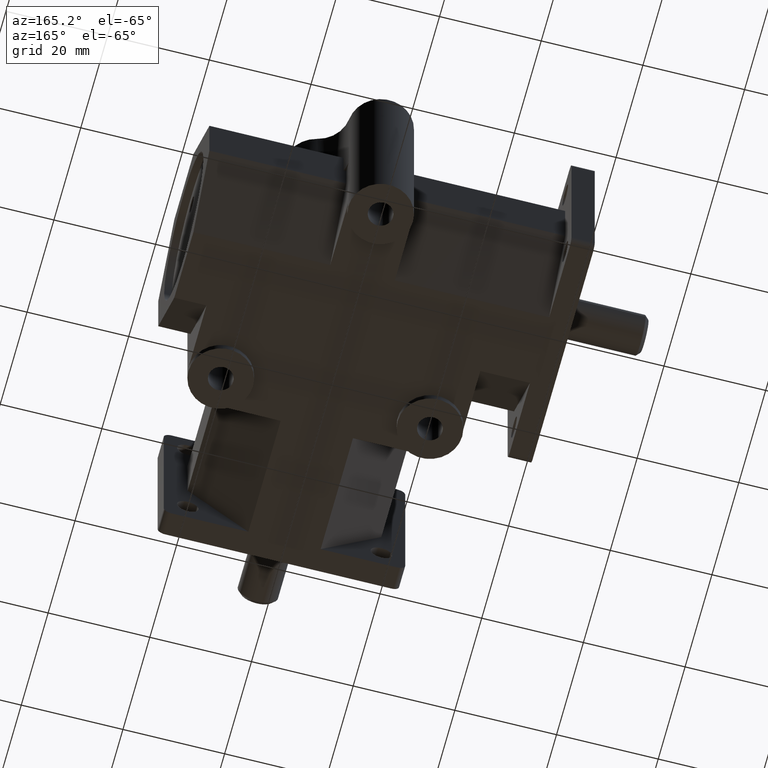
[diagram: clean part render]
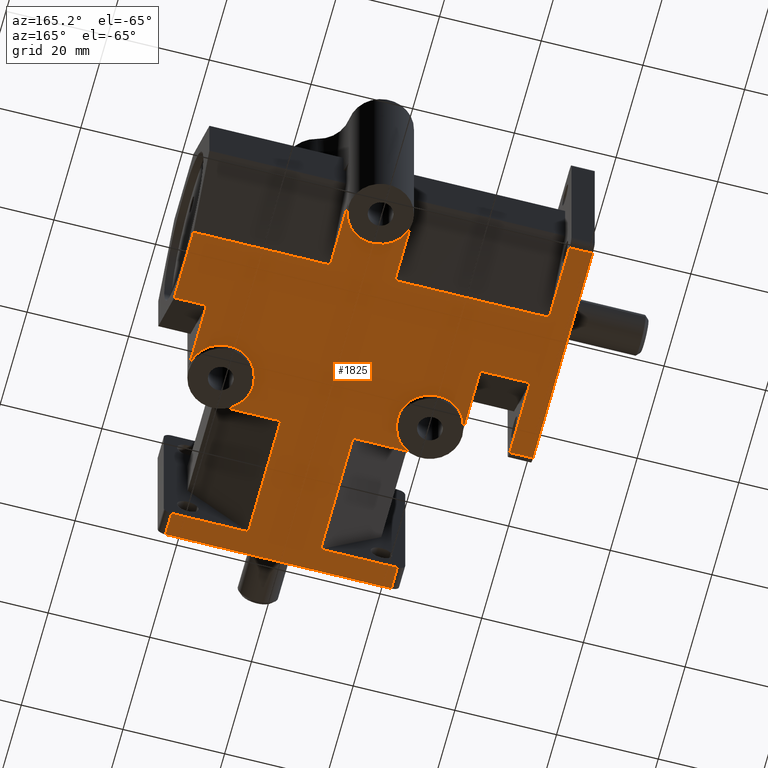
[diagram: same view with one face highlighted and labeled with its STEP entity id]
A machine part, auxiliary view. The second image highlights one B-rep face of the part: STEP entity #1825.
In plain terms, the highlighted planar face has unit normal (0, 0, 1).
Its self-contained STEP definition (entity closure, byte-faithful):
#64=PLANE('',#1993);
#153=FACE_OUTER_BOUND('',#270,.T.);
#270=EDGE_LOOP('',(#1360,#1361,#1362,#1363,#1364,#1365,#1366,#1367,#1368,
#1369,#1370,#1371,#1372,#1373,#1374,#1375,#1376,#1377,#1378,#1379,#1380,
#1381,#1382,#1383,#1384,#1385,#1386));
#364=CIRCLE('',#1912,6.35);
#412=CIRCLE('',#1994,6.35);
#413=CIRCLE('',#1995,6.35);
#414=CIRCLE('',#1996,6.35);
#469=LINE('',#2785,#642);
#472=LINE('',#2797,#645);
#477=LINE('',#2821,#650);
#480=LINE('',#2833,#653);
#485=LINE('',#2846,#658);
#487=LINE('',#2858,#660);
#488=LINE('',#2860,#661);
#489=LINE('',#2862,#662);
#490=LINE('',#2866,#663);
#491=LINE('',#2868,#664);
#492=LINE('',#2869,#665);
#493=LINE('',#2870,#666);
#494=LINE('',#2872,#667);
#495=LINE('',#2874,#668);
#496=LINE('',#2875,#669);
#497=LINE('',#2877,#670);
#498=LINE('',#2879,#671);
#499=LINE('',#2881,#672);
#500=LINE('',#2883,#673);
#501=LINE('',#2885,#674);
#502=LINE('',#2891,#675);
#503=LINE('',#2893,#676);
#504=LINE('',#2894,#677);
#642=VECTOR('',#2244,1.);
#645=VECTOR('',#2255,1.);
#650=VECTOR('',#2276,1.);
#653=VECTOR('',#2287,1.);
#658=VECTOR('',#2300,1.);
#660=VECTOR('',#2312,1.);
#661=VECTOR('',#2313,1.);
#662=VECTOR('',#2314,1.);
#663=VECTOR('',#2317,1.);
#664=VECTOR('',#2318,1.);
#665=VECTOR('',#2319,1.);
#666=VECTOR('',#2320,1.);
#667=VECTOR('',#2321,1.);
#668=VECTOR('',#2322,1.);
#669=VECTOR('',#2323,1.);
#670=VECTOR('',#2324,1.);
#671=VECTOR('',#2325,1.);
#672=VECTOR('',#2326,1.);
#673=VECTOR('',#2327,1.);
#674=VECTOR('',#2328,1.);
#675=VECTOR('',#2333,1.);
#676=VECTOR('',#2334,1.);
#677=VECTOR('',#2335,1.);
#800=VERTEX_POINT('',#2674);
#801=VERTEX_POINT('',#2676);
#834=VERTEX_POINT('',#2782);
#835=VERTEX_POINT('',#2784);
#837=VERTEX_POINT('',#2790);
#840=VERTEX_POINT('',#2795);
#850=VERTEX_POINT('',#2818);
#851=VERTEX_POINT('',#2820);
#853=VERTEX_POINT('',#2826);
#856=VERTEX_POINT('',#2831);
#865=VERTEX_POINT('',#2857);
#866=VERTEX_POINT('',#2859);
#867=VERTEX_POINT('',#2861);
#868=VERTEX_POINT('',#2863);
#869=VERTEX_POINT('',#2865);
#870=VERTEX_POINT('',#2867);
#871=VERTEX_POINT('',#2871);
#872=VERTEX_POINT('',#2873);
#873=VERTEX_POINT('',#2876);
#874=VERTEX_POINT('',#2878);
#875=VERTEX_POINT('',#2880);
#876=VERTEX_POINT('',#2882);
#877=VERTEX_POINT('',#2884);
#878=VERTEX_POINT('',#2886);
#879=VERTEX_POINT('',#2888);
#880=VERTEX_POINT('',#2890);
#881=VERTEX_POINT('',#2892);
#973=EDGE_CURVE('',#801,#800,#364,.T.);
#1021=EDGE_CURVE('',#834,#835,#469,.T.);
#1027=EDGE_CURVE('',#840,#837,#472,.T.);
#1037=EDGE_CURVE('',#850,#851,#477,.T.);
#1043=EDGE_CURVE('',#856,#853,#480,.T.);
#1050=EDGE_CURVE('',#837,#834,#485,.T.);
#1056=EDGE_CURVE('',#865,#840,#487,.T.);
#1057=EDGE_CURVE('',#866,#865,#488,.T.);
#1058=EDGE_CURVE('',#867,#866,#489,.T.);
#1059=EDGE_CURVE('',#867,#868,#412,.T.);
#1060=EDGE_CURVE('',#869,#868,#490,.T.);
#1061=EDGE_CURVE('',#870,#869,#491,.T.);
#1062=EDGE_CURVE('',#851,#870,#492,.T.);
#1063=EDGE_CURVE('',#853,#850,#493,.T.);
#1064=EDGE_CURVE('',#871,#856,#494,.T.);
#1065=EDGE_CURVE('',#872,#871,#495,.T.);
#1066=EDGE_CURVE('',#801,#872,#496,.T.);
#1067=EDGE_CURVE('',#873,#800,#497,.T.);
#1068=EDGE_CURVE('',#874,#873,#498,.T.);
#1069=EDGE_CURVE('',#874,#875,#499,.T.);
#1070=EDGE_CURVE('',#876,#875,#500,.T.);
#1071=EDGE_CURVE('',#877,#876,#501,.T.);
#1072=EDGE_CURVE('',#877,#878,#413,.T.);
#1073=EDGE_CURVE('',#878,#879,#414,.T.);
#1074=EDGE_CURVE('',#880,#879,#502,.T.);
#1075=EDGE_CURVE('',#881,#880,#503,.T.);
#1076=EDGE_CURVE('',#835,#881,#504,.T.);
#1360=ORIENTED_EDGE('',*,*,#1021,.F.);
#1361=ORIENTED_EDGE('',*,*,#1050,.F.);
#1362=ORIENTED_EDGE('',*,*,#1027,.F.);
#1363=ORIENTED_EDGE('',*,*,#1056,.F.);
#1364=ORIENTED_EDGE('',*,*,#1057,.F.);
#1365=ORIENTED_EDGE('',*,*,#1058,.F.);
#1366=ORIENTED_EDGE('',*,*,#1059,.T.);
#1367=ORIENTED_EDGE('',*,*,#1060,.F.);
#1368=ORIENTED_EDGE('',*,*,#1061,.F.);
#1369=ORIENTED_EDGE('',*,*,#1062,.F.);
#1370=ORIENTED_EDGE('',*,*,#1037,.F.);
#1371=ORIENTED_EDGE('',*,*,#1063,.F.);
#1372=ORIENTED_EDGE('',*,*,#1043,.F.);
#1373=ORIENTED_EDGE('',*,*,#1064,.F.);
#1374=ORIENTED_EDGE('',*,*,#1065,.F.);
#1375=ORIENTED_EDGE('',*,*,#1066,.F.);
#1376=ORIENTED_EDGE('',*,*,#973,.T.);
#1377=ORIENTED_EDGE('',*,*,#1067,.F.);
#1378=ORIENTED_EDGE('',*,*,#1068,.F.);
#1379=ORIENTED_EDGE('',*,*,#1069,.T.);
#1380=ORIENTED_EDGE('',*,*,#1070,.F.);
#1381=ORIENTED_EDGE('',*,*,#1071,.F.);
#1382=ORIENTED_EDGE('',*,*,#1072,.T.);
#1383=ORIENTED_EDGE('',*,*,#1073,.T.);
#1384=ORIENTED_EDGE('',*,*,#1074,.F.);
#1385=ORIENTED_EDGE('',*,*,#1075,.F.);
#1386=ORIENTED_EDGE('',*,*,#1076,.F.);
#1825=ADVANCED_FACE('',(#153),#64,.F.);
#1912=AXIS2_PLACEMENT_3D('',#2677,#2113,#2114);
#1993=AXIS2_PLACEMENT_3D('',#2856,#2310,#2311);
#1994=AXIS2_PLACEMENT_3D('',#2864,#2315,#2316);
#1995=AXIS2_PLACEMENT_3D('',#2887,#2329,#2330);
#1996=AXIS2_PLACEMENT_3D('',#2889,#2331,#2332);
#2113=DIRECTION('center_axis',(0.,0.,1.));
#2114=DIRECTION('ref_axis',(1.,0.,0.));
#2244=DIRECTION('',(0.,1.,0.));
#2255=DIRECTION('',(0.,-1.,0.));
#2276=DIRECTION('',(1.,0.,0.));
#2287=DIRECTION('',(-1.,0.,0.));
#2300=DIRECTION('',(1.,0.,0.));
#2310=DIRECTION('center_axis',(0.,0.,1.));
#2311=DIRECTION('ref_axis',(-1.,0.,0.));
#2312=DIRECTION('',(-1.,0.,0.));
#2313=DIRECTION('',(0.,-1.,0.));
#2314=DIRECTION('',(1.,0.,0.));
#2315=DIRECTION('center_axis',(0.,0.,1.));
#2316=DIRECTION('ref_axis',(1.,0.,0.));
#2317=DIRECTION('',(0.,-1.,0.));
#2318=DIRECTION('',(1.,0.,0.));
#2319=DIRECTION('',(0.,1.,0.));
#2320=DIRECTION('',(0.,-1.,0.));
#2321=DIRECTION('',(0.,1.,0.));
#2322=DIRECTION('',(-1.,0.,0.));
#2323=DIRECTION('',(0.,-1.,0.));
#2324=DIRECTION('',(0.,1.,0.));
#2325=DIRECTION('',(-1.,0.,0.));
#2326=DIRECTION('',(0.,-1.,0.));
#2327=DIRECTION('',(1.,0.,0.));
#2328=DIRECTION('',(0.,1.,0.));
#2329=DIRECTION('center_axis',(0.,0.,1.));
#2330=DIRECTION('ref_axis',(1.,0.,0.));
#2331=DIRECTION('center_axis',(0.,0.,1.));
#2332=DIRECTION('ref_axis',(1.,0.,0.));
#2333=DIRECTION('',(1.,0.,0.));
#2334=DIRECTION('',(0.,1.,0.));
#2335=DIRECTION('',(-1.,0.,0.));
#2674=CARTESIAN_POINT('',(6.35,76.1365,-17.526));
#2676=CARTESIAN_POINT('',(-6.35,76.1365,-17.526));
#2677=CARTESIAN_POINT('Origin',(0.,76.1365,-17.526));
#2782=CARTESIAN_POINT('',(22.225,0.,-17.526));
#2784=CARTESIAN_POINT('',(22.225,4.572,-17.526));
#2785=CARTESIAN_POINT('',(22.225,23.6376233160517,-17.526));
#2790=CARTESIAN_POINT('',(-22.225,0.,-17.526));
#2795=CARTESIAN_POINT('',(-22.225,4.572,-17.526));
#2797=CARTESIAN_POINT('',(-22.225,21.3516233160517,-17.526));
#2818=CARTESIAN_POINT('',(-41.275,33.3375,-17.526));
#2820=CARTESIAN_POINT('',(-36.703,33.3375,-17.526));
#2821=CARTESIAN_POINT('',(-18.3515,33.3375,-17.526));
#2826=CARTESIAN_POINT('',(-41.275,77.7875,-17.526));
#2831=CARTESIAN_POINT('',(-36.703,77.7875,-17.526));
#2833=CARTESIAN_POINT('',(-20.6375,77.7875,-17.526));
#2846=CARTESIAN_POINT('',(23.749,0.,-17.526));
#2856=CARTESIAN_POINT('Origin',(-3.41480316246034E-16,42.7032466321034,
-17.526));
#2857=CARTESIAN_POINT('',(-7.112,4.572,-17.526));
#2858=CARTESIAN_POINT('',(-19.05,4.572,-17.526));
#2859=CARTESIAN_POINT('',(-7.112,28.6385,-17.526));
#2860=CARTESIAN_POINT('',(-7.112,23.6376233160517,-17.526));
#2861=CARTESIAN_POINT('',(-20.574,28.6385,-17.526));
#2862=CARTESIAN_POINT('',(-9.525,28.6385,-17.526));
#2863=CARTESIAN_POINT('',(-26.924,34.9885,-17.526));
#2864=CARTESIAN_POINT('Origin',(-20.574,34.9885,-17.526));
#2865=CARTESIAN_POINT('',(-26.924,48.4505,-17.526));
#2866=CARTESIAN_POINT('',(-26.924,34.9885,-17.526));
#2867=CARTESIAN_POINT('',(-36.703,48.4505,-17.526));
#2868=CARTESIAN_POINT('',(-13.462,48.4505,-17.526));
#2869=CARTESIAN_POINT('',(-36.703,39.7031233160517,-17.526));
#2870=CARTESIAN_POINT('',(-41.275,31.8135,-17.526));
#2871=CARTESIAN_POINT('',(-36.703,62.6745,-17.526));
#2872=CARTESIAN_POINT('',(-36.703,74.6125,-17.526));
#2873=CARTESIAN_POINT('',(-6.35,62.6745,-17.526));
#2874=CARTESIAN_POINT('',(-18.3515,62.6745,-17.526));
#2875=CARTESIAN_POINT('',(-6.35,58.7531233160517,-17.526));
#2876=CARTESIAN_POINT('',(6.35,62.6745,-17.526));
#2877=CARTESIAN_POINT('',(6.35,74.6125,-17.526));
#2878=CARTESIAN_POINT('',(33.274,62.6745,-17.526));
#2879=CARTESIAN_POINT('',(3.175,62.6745,-17.526));
#2880=CARTESIAN_POINT('',(33.274,48.4505,-17.526));
#2881=CARTESIAN_POINT('',(33.274,10.9604956985517,-17.526));
#2882=CARTESIAN_POINT('',(26.924,48.4505,-17.526));
#2883=CARTESIAN_POINT('',(18.3515,48.4505,-17.526));
#2884=CARTESIAN_POINT('',(26.924,34.9885,-17.526));
#2885=CARTESIAN_POINT('',(26.924,39.7031233160517,-17.526));
#2886=CARTESIAN_POINT('',(14.224,34.9885,-17.526));
#2887=CARTESIAN_POINT('Origin',(20.574,34.9885,-17.526));
#2888=CARTESIAN_POINT('',(20.574,28.6385,-17.526));
#2889=CARTESIAN_POINT('Origin',(20.574,34.9885,-17.526));
#2890=CARTESIAN_POINT('',(7.112,28.6385,-17.526));
#2891=CARTESIAN_POINT('',(20.574,28.6385,-17.526));
#2892=CARTESIAN_POINT('',(7.112,4.572,-17.526));
#2893=CARTESIAN_POINT('',(7.112,35.5756233160517,-17.526));
#2894=CARTESIAN_POINT('',(9.525,4.572,-17.526));